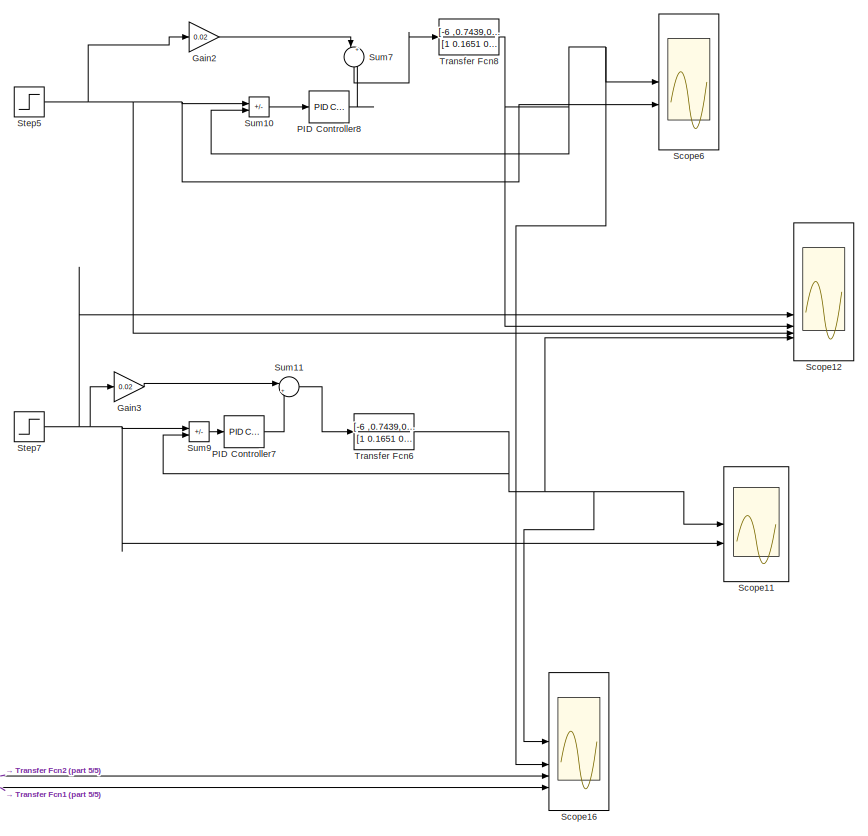
[diagram: root canvas - part 1/5, left side, full height]
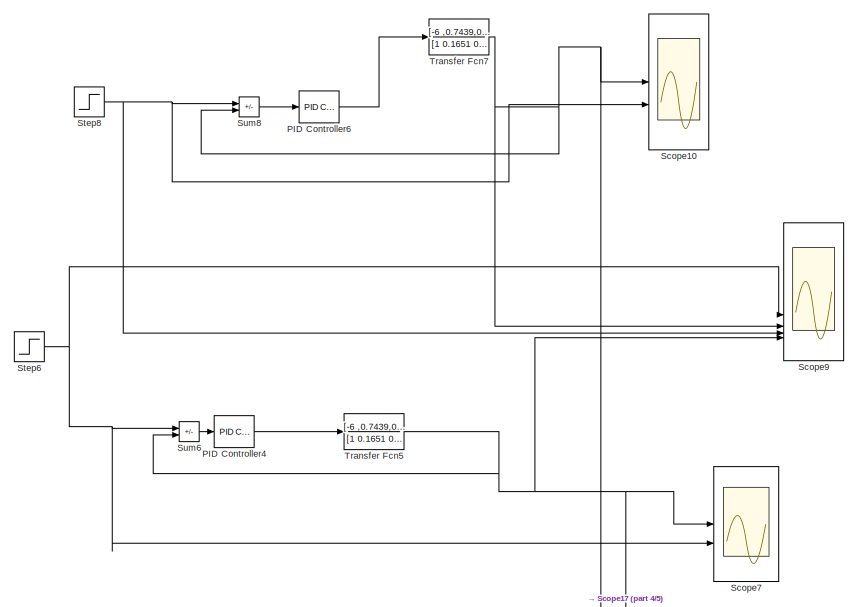
[diagram: root canvas - part 2/5, central region]
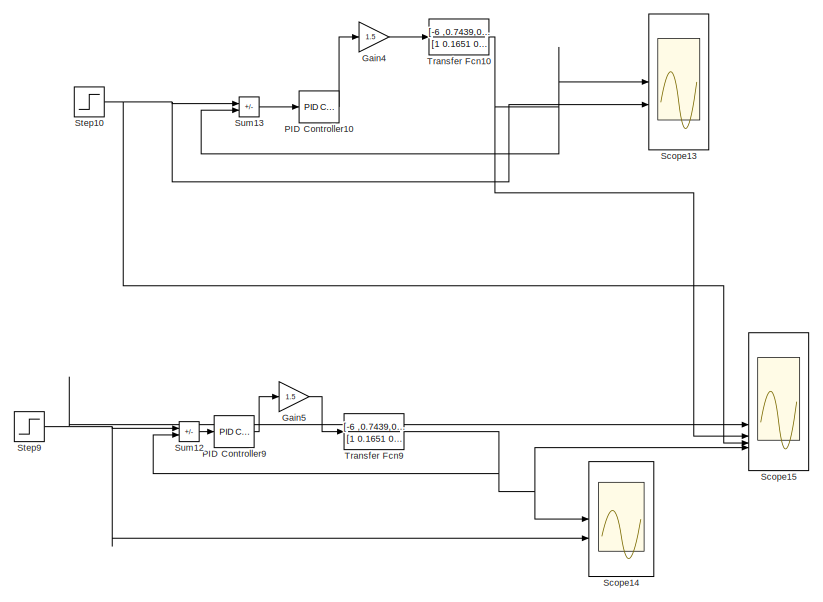
[diagram: root canvas - part 3/5, middle right region]
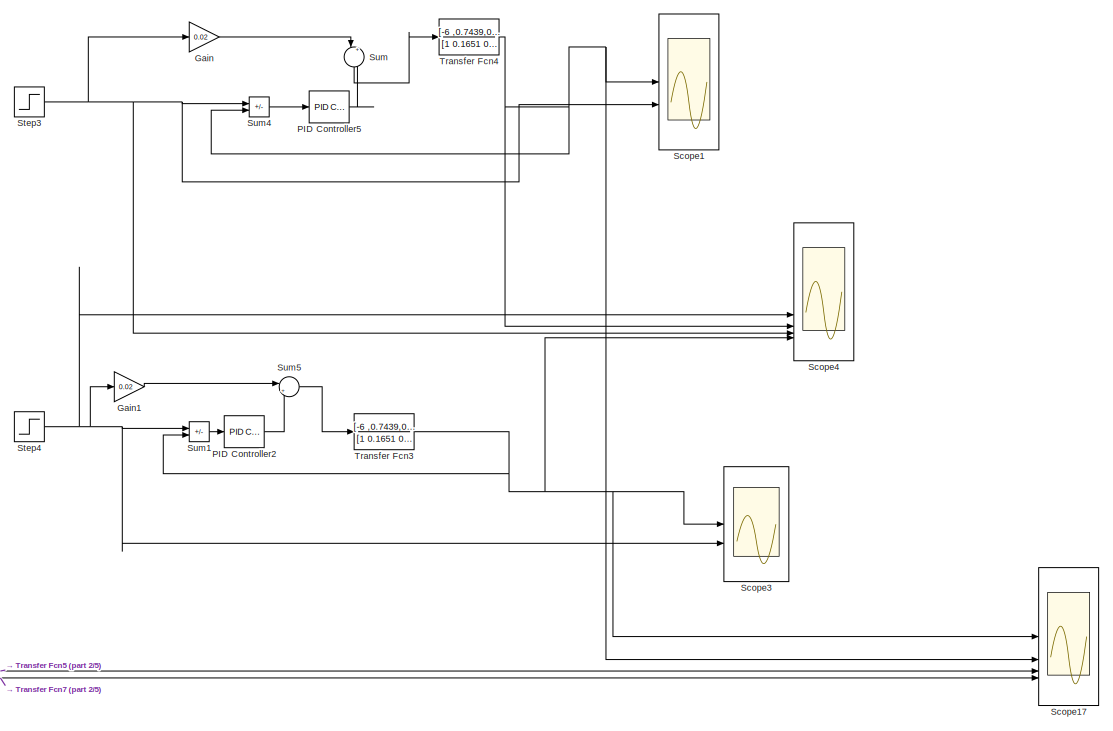
[diagram: root canvas - part 4/5, right side, full height]
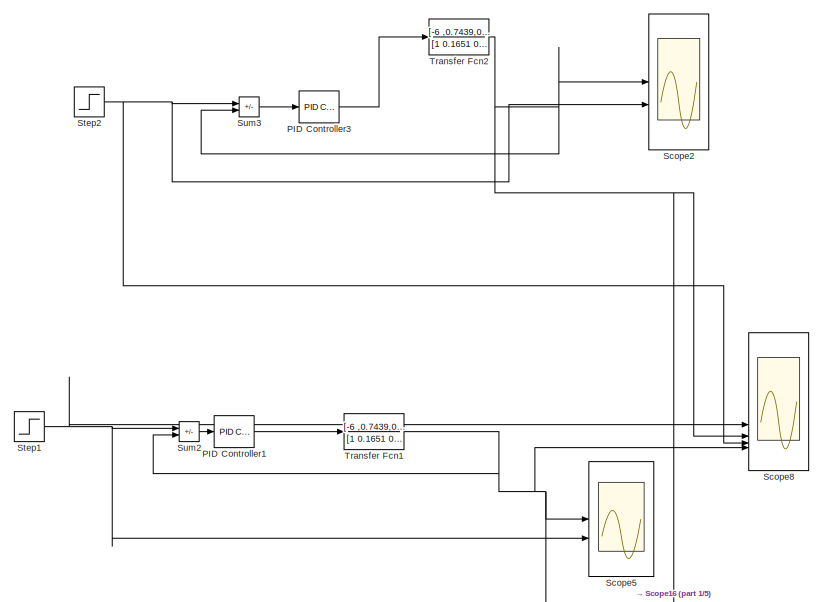
[diagram: root canvas - part 5/5, middle left region]
MODEL slx_253836fabf24
KIND model
CONFIG AbsTol = auto
CONFIG EnableMultiTasking = off
CONFIG FixedStep = auto
CONFIG MaxStep = auto
CONFIG MinStep = auto
CONFIG RelTol = 1e-3
CONFIG SampleTimeConstraint = Unconstrained
CONFIG SolverName = ode15s
CONFIG StartTime = 0.0
CONFIG StopTime = 300
BLOCK [Gain] Gain
  Gain = 0.02
BLOCK [Gain] Gain1
  Gain = 0.02
BLOCK [Gain] Gain2
  Gain = 0.02
BLOCK [Gain] Gain3
  Gain = 0.02
BLOCK [Gain] Gain4
  Gain = 1.5
BLOCK [Gain] Gain5
  Gain = 1.5
BLOCK [Reference] PID Controller1  REF=slpidlib/PID Controller
  LibrarySourceBlock = simulink/Continuous/PID Controller
  SourceBlock = slpidlib/PID Controller
  SourceType = PID 1dof
BLOCK [Reference] PID Controller10  REF=slpidlib/PID Controller
  LibrarySourceBlock = simulink/Continuous/PID Controller
  SourceBlock = slpidlib/PID Controller
  SourceType = PID 1dof
BLOCK [Reference] PID Controller2  REF=slpidlib/PID Controller
  LibrarySourceBlock = simulink/Continuous/PID Controller
  SourceBlock = slpidlib/PID Controller
  SourceType = PID 1dof
BLOCK [Reference] PID Controller3  REF=slpidlib/PID Controller
  LibrarySourceBlock = simulink/Continuous/PID Controller
  SourceBlock = slpidlib/PID Controller
  SourceType = PID 1dof
BLOCK [Reference] PID Controller4  REF=slpidlib/PID Controller
  LibrarySourceBlock = simulink/Continuous/PID Controller
  SourceBlock = slpidlib/PID Controller
  SourceType = PID 1dof
BLOCK [Reference] PID Controller5  REF=slpidlib/PID Controller
  LibrarySourceBlock = simulink/Continuous/PID Controller
  SourceBlock = slpidlib/PID Controller
  SourceType = PID 1dof
BLOCK [Reference] PID Controller6  REF=slpidlib/PID Controller
  LibrarySourceBlock = simulink/Continuous/PID Controller
  SourceBlock = slpidlib/PID Controller
  SourceType = PID 1dof
BLOCK [Reference] PID Controller7  REF=slpidlib/PID Controller
  LibrarySourceBlock = simulink/Continuous/PID Controller
  SourceBlock = slpidlib/PID Controller
  SourceType = PID 1dof
BLOCK [Reference] PID Controller8  REF=slpidlib/PID Controller
  LibrarySourceBlock = simulink/Continuous/PID Controller
  SourceBlock = slpidlib/PID Controller
  SourceType = PID 1dof
BLOCK [Reference] PID Controller9  REF=slpidlib/PID Controller
  LibrarySourceBlock = simulink/Continuous/PID Controller
  SourceBlock = slpidlib/PID Controller
  SourceType = PID 1dof
BLOCK [Scope] Scope1
  Floating = off
  NumInputPorts = 2
  ScopeSpecificationString = Simulink.scopes.TimeScopeBlockCfg('CurrentConfiguration', extmgr.ConfigurationSet(extmgr.Configuration('Core','General UI',true),extmgr.Configuration('Core','Source UI',true),extmgr.Configuration('Sources','WiredSimulink',true,'DataLoggingVariableName','ScopeData4'),extmgr.Configuration('Visuals','Time Domain',true,'SerializedDisplays',{struct('MinYLimReal','-11.46428','MaxYLimReal','51.29556','YL...<+1543ch>
BLOCK [Scope] Scope10
  Floating = off
  NumInputPorts = 2
  ScopeSpecificationString = Simulink.scopes.TimeScopeBlockCfg('CurrentConfiguration', extmgr.ConfigurationSet(extmgr.Configuration('Core','General UI',true),extmgr.Configuration('Core','Source UI',true),extmgr.Configuration('Sources','WiredSimulink',true,'DataLoggingVariableName','ScopeData10'),extmgr.Configuration('Visuals','Time Domain',true,'SerializedDisplays',{struct('MinYLimReal','-3.57269','MaxYLimReal','22.87714','YL...<+1591ch>
BLOCK [Scope] Scope11
  Floating = off
  NumInputPorts = 2
  ScopeSpecificationString = Simulink.scopes.TimeScopeBlockCfg('CurrentConfiguration', extmgr.ConfigurationSet(extmgr.Configuration('Core','General UI',true),extmgr.Configuration('Core','Source UI',true),extmgr.Configuration('Sources','WiredSimulink',true,'DataLoggingVariableName','ScopeData7'),extmgr.Configuration('Visuals','Time Domain',true,'SerializedDisplays',{struct('MinYLimReal','-0.0264','MaxYLimReal','0.12216','YLabe...<+1422ch>
BLOCK [Scope] Scope12
  Floating = off
  NumInputPorts = 5
  ScopeSpecificationString = Simulink.scopes.TimeScopeBlockCfg('CurrentConfiguration', extmgr.ConfigurationSet(extmgr.Configuration('Core','General UI',true),extmgr.Configuration('Core','Source UI',true),extmgr.Configuration('Sources','WiredSimulink',true,'DataLoggingVariableName','ScopeData8'),extmgr.Configuration('Visuals','Time Domain',true,'SerializedDisplays',{struct('MinYLimReal','-0.0264','MaxYLimReal','0.12218','YLabe...<+1848ch>
BLOCK [Scope] Scope13
  Floating = off
  NumInputPorts = 2
  ScopeSpecificationString = Simulink.scopes.TimeScopeBlockCfg('CurrentConfiguration', extmgr.ConfigurationSet(extmgr.Configuration('Core','General UI',true),extmgr.Configuration('Core','Source UI',true),extmgr.Configuration('Sources','WiredSimulink',true,'DataLoggingVariableName','ScopeData10'),extmgr.Configuration('Visuals','Time Domain',true,'SerializedDisplays',{struct('MinYLimReal','-3.57269','MaxYLimReal','22.87714','YL...<+1458ch>
BLOCK [Scope] Scope14
  Floating = off
  NumInputPorts = 2
  ScopeSpecificationString = Simulink.scopes.TimeScopeBlockCfg('CurrentConfiguration', extmgr.ConfigurationSet(extmgr.Configuration('Core','General UI',true),extmgr.Configuration('Core','Source UI',true),extmgr.Configuration('Sources','WiredSimulink',true,'DataLoggingVariableName','ScopeData11'),extmgr.Configuration('Visuals','Time Domain',true,'SerializedDisplays',{struct('MinYLimReal','-4.19784','MaxYLimReal','29.30321','YL...<+1429ch>
BLOCK [Scope] Scope15
  Floating = off
  NumInputPorts = 5
  ScopeSpecificationString = Simulink.scopes.TimeScopeBlockCfg('CurrentConfiguration', extmgr.ConfigurationSet(extmgr.Configuration('Core','General UI',true),extmgr.Configuration('Core','Source UI',true),extmgr.Configuration('Sources','WiredSimulink',true,'DataLoggingVariableName','ScopeData12'),extmgr.Configuration('Visuals','Time Domain',true,'SerializedDisplays',{struct('MinYLimReal','-0.01114','MaxYLimReal','0.07269','YLa...<+1801ch>
BLOCK [Scope] Scope16
  Floating = off
  NumInputPorts = 5
  ScopeSpecificationString = Simulink.scopes.TimeScopeBlockCfg('CurrentConfiguration', extmgr.ConfigurationSet(extmgr.Configuration('Core','General UI',true),extmgr.Configuration('Core','Source UI',true),extmgr.Configuration('Sources','WiredSimulink',true,'DataLoggingVariableName','ScopeData13'),extmgr.Configuration('Visuals','Time Domain',true,'SerializedDisplays',{struct('MinYLimReal','-0.0264','MaxYLimReal','0.12216','YLab...<+1865ch>
BLOCK [Scope] Scope17
  Floating = off
  NumInputPorts = 5
  ScopeSpecificationString = Simulink.scopes.TimeScopeBlockCfg('CurrentConfiguration', extmgr.ConfigurationSet(extmgr.Configuration('Core','General UI',true),extmgr.Configuration('Core','Source UI',true),extmgr.Configuration('Sources','WiredSimulink',true,'DataLoggingVariableName','ScopeData14'),extmgr.Configuration('Visuals','Time Domain',true,'SerializedDisplays',{struct('MinYLimReal','-13.57461','MaxYLimReal','62.80755','Y...<+2121ch>
BLOCK [Scope] Scope2
  Floating = off
  NumInputPorts = 2
  ScopeSpecificationString = Simulink.scopes.TimeScopeBlockCfg('CurrentConfiguration', extmgr.ConfigurationSet(extmgr.Configuration('Core','General UI',true),extmgr.Configuration('Core','Source UI',true),extmgr.Configuration('Sources','WiredSimulink',true,'DataLoggingVariableName','ScopeData1'),extmgr.Configuration('Visuals','Time Domain',true,'SerializedDisplays',{struct('MinYLimReal','-0.00693','MaxYLimReal','0.04442','YLab...<+1552ch>
BLOCK [Scope] Scope3
  Floating = off
  NumInputPorts = 2
  ScopeSpecificationString = Simulink.scopes.TimeScopeBlockCfg('CurrentConfiguration', extmgr.ConfigurationSet(extmgr.Configuration('Core','General UI',true),extmgr.Configuration('Core','Source UI',true),extmgr.Configuration('Sources','WiredSimulink',true,'DataLoggingVariableName','ScopeData5'),extmgr.Configuration('Visuals','Time Domain',true,'SerializedDisplays',{struct('MinYLimReal','-13.57461','MaxYLimReal','62.80755','YL...<+1430ch>
BLOCK [Scope] Scope4
  Floating = off
  NumInputPorts = 5
  ScopeSpecificationString = Simulink.scopes.TimeScopeBlockCfg('CurrentConfiguration', extmgr.ConfigurationSet(extmgr.Configuration('Core','General UI',true),extmgr.Configuration('Core','Source UI',true),extmgr.Configuration('Sources','WiredSimulink',true,'DataLoggingVariableName','ScopeData6'),extmgr.Configuration('Visuals','Time Domain',true,'SerializedDisplays',{struct('MinYLimReal','-13.57552','MaxYLimReal','62.81573','YL...<+1860ch>
BLOCK [Scope] Scope5
  Floating = off
  NumInputPorts = 2
  ScopeSpecificationString = Simulink.scopes.TimeScopeBlockCfg('CurrentConfiguration', extmgr.ConfigurationSet(extmgr.Configuration('Core','General UI',true),extmgr.Configuration('Core','Source UI',true),extmgr.Configuration('Sources','WiredSimulink',true,'DataLoggingVariableName','ScopeData2'),extmgr.Configuration('Visuals','Time Domain',true,'SerializedDisplays',{struct('MinYLimReal','-0.00817','MaxYLimReal','0.05698','YLab...<+1535ch>
BLOCK [Scope] Scope6
  Floating = off
  NumInputPorts = 2
  ScopeSpecificationString = Simulink.scopes.TimeScopeBlockCfg('CurrentConfiguration', extmgr.ConfigurationSet(extmgr.Configuration('Core','General UI',true),extmgr.Configuration('Core','Source UI',true),extmgr.Configuration('Sources','WiredSimulink',true,'DataLoggingVariableName','ScopeData9'),extmgr.Configuration('Visuals','Time Domain',true,'SerializedDisplays',{struct('MinYLimReal','-0.0223','MaxYLimReal','0.09977','YLabe...<+1538ch>
BLOCK [Scope] Scope7
  Floating = off
  NumInputPorts = 2
  ScopeSpecificationString = Simulink.scopes.TimeScopeBlockCfg('CurrentConfiguration', extmgr.ConfigurationSet(extmgr.Configuration('Core','General UI',true),extmgr.Configuration('Core','Source UI',true),extmgr.Configuration('Sources','WiredSimulink',true,'DataLoggingVariableName','ScopeData7'),extmgr.Configuration('Visuals','Time Domain',true,'SerializedDisplays',{struct('MinYLimReal','-4.19784','MaxYLimReal','29.30321','YLa...<+1541ch>
BLOCK [Scope] Scope8
  Floating = off
  NumInputPorts = 5
  ScopeSpecificationString = Simulink.scopes.TimeScopeBlockCfg('CurrentConfiguration', extmgr.ConfigurationSet(extmgr.Configuration('Core','General UI',true),extmgr.Configuration('Core','Source UI',true),extmgr.Configuration('Sources','WiredSimulink',true,'DataLoggingVariableName','ScopeData3'),extmgr.Configuration('Visuals','Time Domain',true,'SerializedDisplays',{struct('MinYLimReal','-0.00833','MaxYLimReal','0.05699','YLab...<+1850ch>
BLOCK [Scope] Scope9
  Floating = off
  NumInputPorts = 5
  ScopeSpecificationString = Simulink.scopes.TimeScopeBlockCfg('CurrentConfiguration', extmgr.ConfigurationSet(extmgr.Configuration('Core','General UI',true),extmgr.Configuration('Core','Source UI',true),extmgr.Configuration('Sources','WiredSimulink',true,'DataLoggingVariableName','ScopeData9'),extmgr.Configuration('Visuals','Time Domain',true,'SerializedDisplays',{struct('MinYLimReal','-4.09239','MaxYLimReal','27.55438','YLa...<+1755ch>
BLOCK [Step] Step1
  After = 1.1*0.0389
  SampleTime = 0
  Time = 5
BLOCK [Step] Step10
  After = 0.9*0.0389
  SampleTime = 0
  Time = 5
BLOCK [Step] Step2
  After = 0.9*0.0389
  SampleTime = 0
  Time = 5
BLOCK [Step] Step3
  After = 0.9*20
  SampleTime = 0
  Time = 5
BLOCK [Step] Step4
  After = 1.1*20
  SampleTime = 0
  Time = 5
BLOCK [Step] Step5
  After = 0.9*0.0389
  SampleTime = 0
  Time = 5
BLOCK [Step] Step6
  After = 1.1*20
  SampleTime = 0
  Time = 5
BLOCK [Step] Step7
  After = 1.1*0.0389
  SampleTime = 0
  Time = 5
BLOCK [Step] Step8
  After = 0.9*20
  SampleTime = 0
  Time = 5
BLOCK [Step] Step9
  After = 1.1*0.0389
  SampleTime = 0
  Time = 5
BLOCK [Sum] Sum
  Inputs = |++
  NameLocation = left
BLOCK [Sum] Sum1
  IconShape = rectangular
  Inputs = +-
BLOCK [Sum] Sum10
  IconShape = rectangular
  Inputs = +-
BLOCK [Sum] Sum11
  Inputs = |++
BLOCK [Sum] Sum12
  IconShape = rectangular
  Inputs = +-
BLOCK [Sum] Sum13
  IconShape = rectangular
  Inputs = +-
BLOCK [Sum] Sum2
  IconShape = rectangular
  Inputs = +-
BLOCK [Sum] Sum3
  IconShape = rectangular
  Inputs = +-
BLOCK [Sum] Sum4
  IconShape = rectangular
  Inputs = +-
BLOCK [Sum] Sum5
  Inputs = |++
BLOCK [Sum] Sum6
  IconShape = rectangular
  Inputs = +-
BLOCK [Sum] Sum7
  Inputs = |++
  NameLocation = left
BLOCK [Sum] Sum8
  IconShape = rectangular
  Inputs = +-
BLOCK [Sum] Sum9
  IconShape = rectangular
  Inputs = +-
BLOCK [TransferFcn] Transfer Fcn1
  Denominator = [1 0.1651  0.01616   0.0004375]
  Numerator = [-6 ,0.7439,0.03802]
BLOCK [TransferFcn] Transfer Fcn10
  Denominator = [1 0.1651  0.01616   0.0004375]
  Numerator = [-6 ,0.7439,0.03802]
BLOCK [TransferFcn] Transfer Fcn2
  Denominator = [1 0.1651  0.01616   0.0004375]
  Numerator = [-6 ,0.7439,0.03802]
BLOCK [TransferFcn] Transfer Fcn3
  Denominator = [1 0.1651  0.01616   0.0004375]
  Numerator = [-6 ,0.7439,0.03802]
BLOCK [TransferFcn] Transfer Fcn4
  Denominator = [1 0.1651  0.01616   0.0004375]
  Numerator = [-6 ,0.7439,0.03802]
BLOCK [TransferFcn] Transfer Fcn5
  Denominator = [1 0.1651  0.01616   0.0004375]
  Numerator = [-6 ,0.7439,0.03802]
BLOCK [TransferFcn] Transfer Fcn6
  Denominator = [1 0.1651  0.01616   0.0004375]
  Numerator = [-6 ,0.7439,0.03802]
BLOCK [TransferFcn] Transfer Fcn7
  Denominator = [1 0.1651  0.01616   0.0004375]
  Numerator = [-6 ,0.7439,0.03802]
BLOCK [TransferFcn] Transfer Fcn8
  Denominator = [1 0.1651  0.01616   0.0004375]
  Numerator = [-6 ,0.7439,0.03802]
BLOCK [TransferFcn] Transfer Fcn9
  Denominator = [1 0.1651  0.01616   0.0004375]
  Numerator = [-6 ,0.7439,0.03802]
LINE Gain1:1 -> Sum5:1
LINE Gain2:1 -> Sum7:1
LINE Gain3:1 -> Sum11:1
LINE Gain4:1 -> Transfer Fcn10:1
LINE Gain5:1 -> Transfer Fcn9:1
LINE Gain:1 -> Sum:1
LINE PID Controller10:1 -> Gain4:1
LINE PID Controller1:1 -> Transfer Fcn1:1
LINE PID Controller2:1 -> Sum5:2
LINE PID Controller3:1 -> Transfer Fcn2:1
LINE PID Controller4:1 -> Transfer Fcn5:1
LINE PID Controller5:1 -> Sum:2
LINE PID Controller6:1 -> Transfer Fcn7:1
LINE PID Controller7:1 -> Sum11:2
LINE PID Controller8:1 -> Sum7:2
LINE PID Controller9:1 -> Gain5:1
NET Step10:1 -> Scope13:2, Scope15:4, Sum13:1
NET Step1:1 -> Scope5:2, Scope8:2, Sum2:1
NET Step2:1 -> Scope2:2, Scope8:4, Sum3:1
NET Step3:1 -> Gain:1, Scope1:2, Scope4:4, Sum4:1
NET Step4:1 -> Gain1:1, Scope3:2, Scope4:2, Sum1:1
NET Step5:1 -> Gain2:1, Scope12:4, Scope6:2, Sum10:1
NET Step6:1 -> Scope7:2, Scope9:2, Sum6:1
NET Step7:1 -> Gain3:1, Scope11:2, Scope12:2, Sum9:1
NET Step8:1 -> Scope10:2, Scope9:4, Sum8:1
NET Step9:1 -> Scope14:2, Scope15:2, Sum12:1
LINE Sum10:1 -> PID Controller8:1
LINE Sum11:1 -> Transfer Fcn6:1
LINE Sum12:1 -> PID Controller9:1
LINE Sum13:1 -> PID Controller10:1
LINE Sum1:1 -> PID Controller2:1
LINE Sum2:1 -> PID Controller1:1
LINE Sum3:1 -> PID Controller3:1
LINE Sum4:1 -> PID Controller5:1
LINE Sum5:1 -> Transfer Fcn3:1
LINE Sum6:1 -> PID Controller4:1
LINE Sum7:1 -> Transfer Fcn8:1
LINE Sum8:1 -> PID Controller6:1
LINE Sum9:1 -> PID Controller7:1
LINE Sum:1 -> Transfer Fcn4:1
NET Transfer Fcn10:1 -> Scope13:1, Scope15:3, Sum13:2
NET Transfer Fcn1:1 -> Scope16:5, Scope5:1, Scope8:5, Sum2:2
NET Transfer Fcn2:1 -> Scope16:3, Scope2:1, Scope8:3, Sum3:2
NET Transfer Fcn3:1 -> Scope17:1, Scope3:1, Scope4:5, Sum1:2
NET Transfer Fcn4:1 -> Scope17:2, Scope1:1, Scope4:3, Sum4:2
NET Transfer Fcn5:1 -> Scope17:3, Scope7:1, Scope9:5, Sum6:2
NET Transfer Fcn6:1 -> Scope11:1, Scope12:5, Scope16:1, Sum9:2
NET Transfer Fcn7:1 -> Scope10:1, Scope17:4, Scope9:3, Sum8:2
NET Transfer Fcn8:1 -> Scope12:3, Scope16:2, Scope6:1, Sum10:2
NET Transfer Fcn9:1 -> Scope14:1, Scope15:5, Sum12:2
note: NET lines group one-source signal fan-out (src -> all destinations, sorted); 1:1 wires keep LINE
